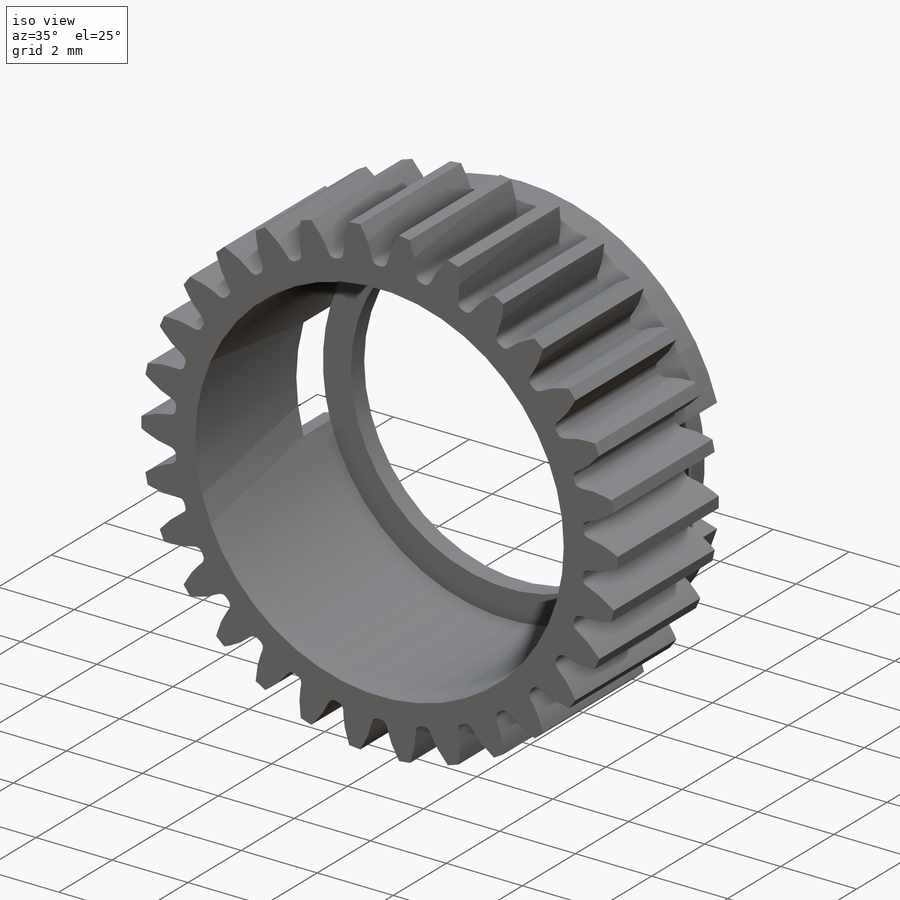
[diagram: iso view]
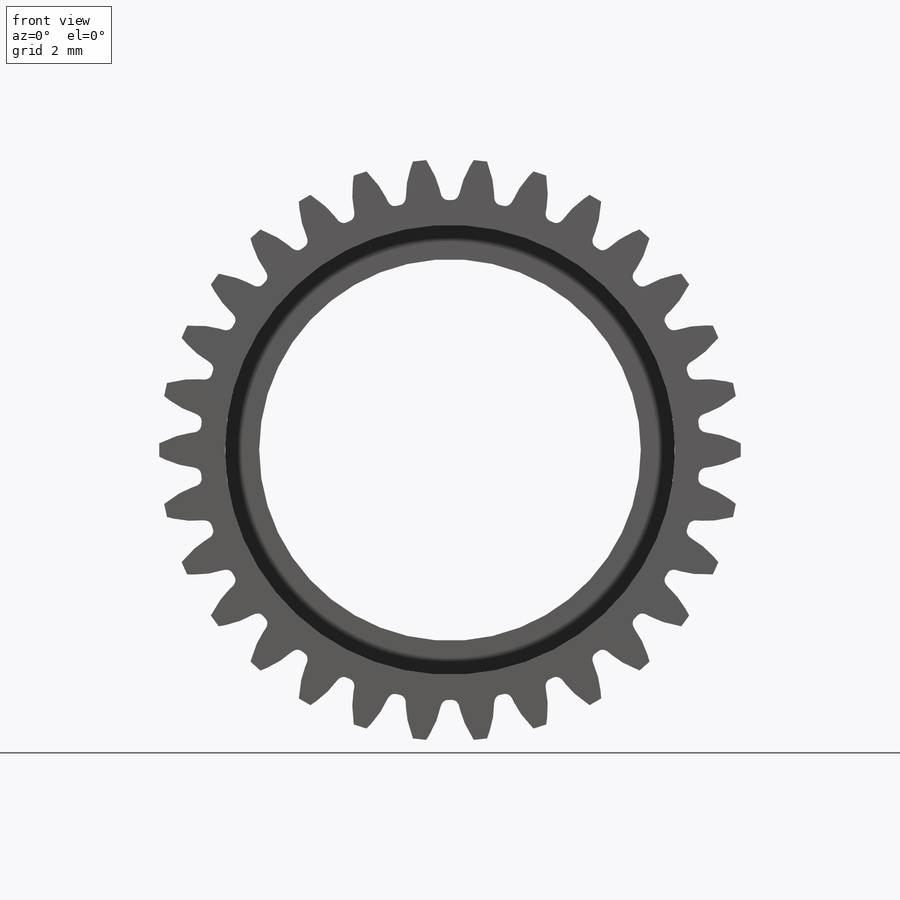
[diagram: front view]
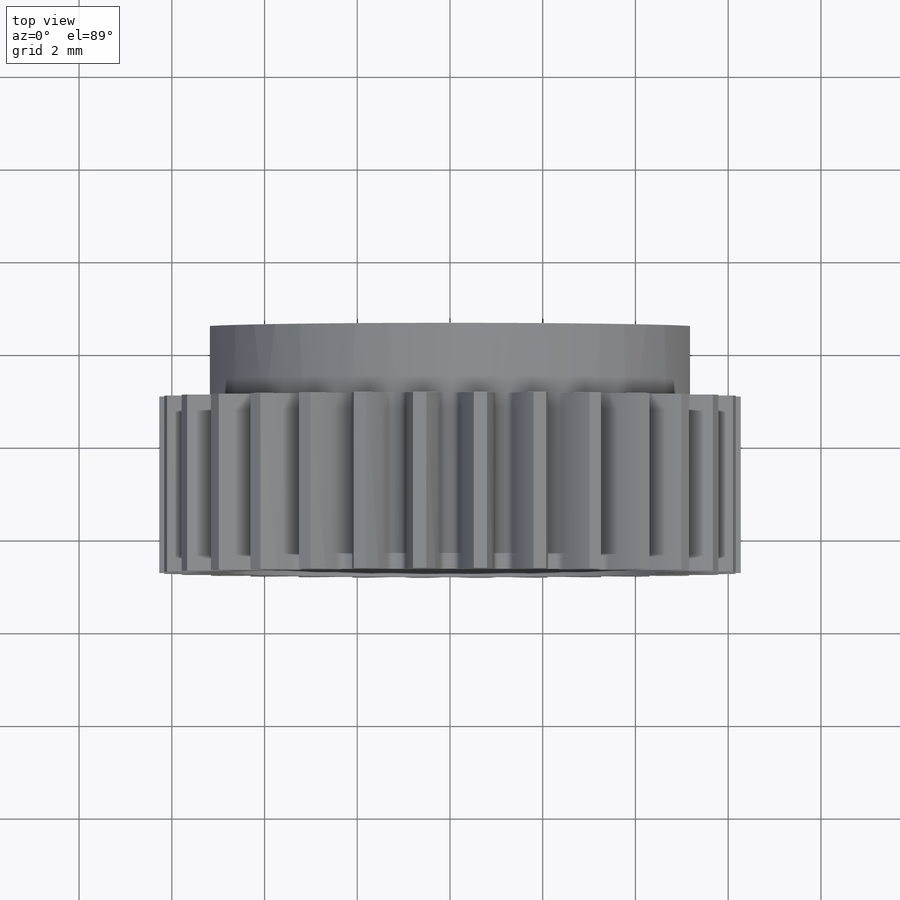
[diagram: top view]
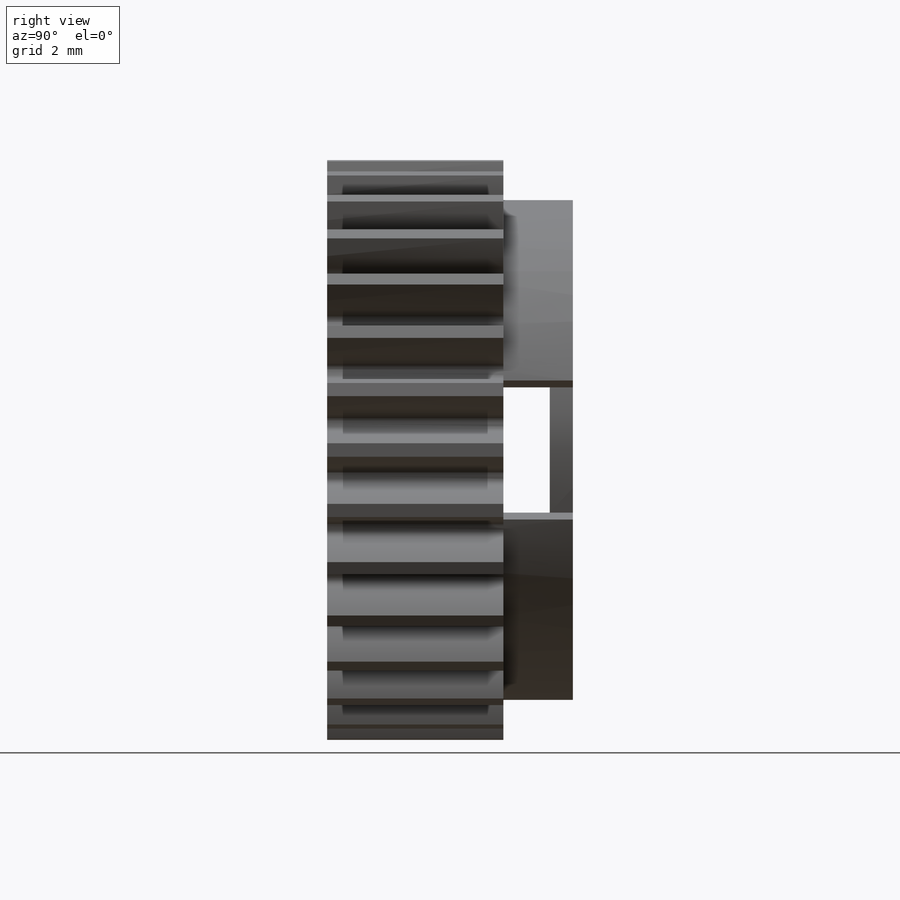
[diagram: right view]
SOLIDWORKS PART (.sldprt)
format: sldprt  version: not decoded by parser v0  size: 2,494,464 bytes
history: native  units: mm
features: sketch x12, cut_extrude x7, extrude x5, material x1, pattern_circular x1, chamfer x1, fillet x1 (+16 scaffold rows collapsed)
feature tree (44):
  scaffold x16  (default folders/planes/origin — collapsed)
  material  "Material <not specified>"
  sketch  "Gear-BaseSketch"  dims[D1=~12.544004mm]
  extrude  "0.392 Module, 11.7600mm P.D."  Depth=1.6mm
  sketch  "Tooth-Sketch; Backlash: 0.0000mm"
  cut_extrude  "Tooth-Cut, Coarse Pitch Involute 20 deg"  Depth=10mm
  pattern_circular  "Tooth Pattern, 30 / 30"  Count=30 Angle=12deg
  sketch  "Sketch3"  dims[D1=3.8mm D2=1.3mm]
  extrude  "Plunger"  Depth=2mm
  chamfer  "Plunger Chamfer"  Distance=0.4mm Angle=30deg
  sketch  "Sketch4"  dims[D1=0.0mm D2=0.05mm]
  cut_extrude  "Shrink Gear Profile"  [1 undecoded]
  sketch  "Sketch5"  dims[D1=1.1mm]
  cut_extrude  "Shaft Hole"  [1 undecoded]
  sketch  "Sketch6"  dims[D1=4.4mm]
  cut_extrude  "Shoulder Bottom"  Depth=0.3mm
  sketch  "Sketch7"  dims[D1=4.4mm]
  cut_extrude  "Shoulder Top"  Depth=0.3mm
  fillet  "Shoulder Fillet"  Radius=0.3mm
  sketch  "Sketch8"  dims[D1=0.0mm]
  extrude  "Boss-Extrude1"  Depth=2.2mm
  sketch  "Sketch9"  dims[D1=9.7mm]
  cut_extrude  "Slip Ring Hat Center Hole"  [1 undecoded]
  sketch  "Sketch10"
  extrude  "Boss-Extrude2"  Depth=1mm
  sketch  "Sketch11"  dims[D1=8.23mm]
  extrude  "Boss-Extrude3"  Depth=0.5mm
  sketch  "Sketch12"  dims[D1=3.0mm]
  cut_extrude  "Cut-Extrude2"  [1 undecoded]
decode coverage: 21 of 27 modeling features carry decoded parameters
note: ~ marks probable driven/reference dimensions
note: 4 parameter values undecoded
summary: no parameter record found for 4 features
note: suppression state not decoded; provenance and decode notes live in map.json
